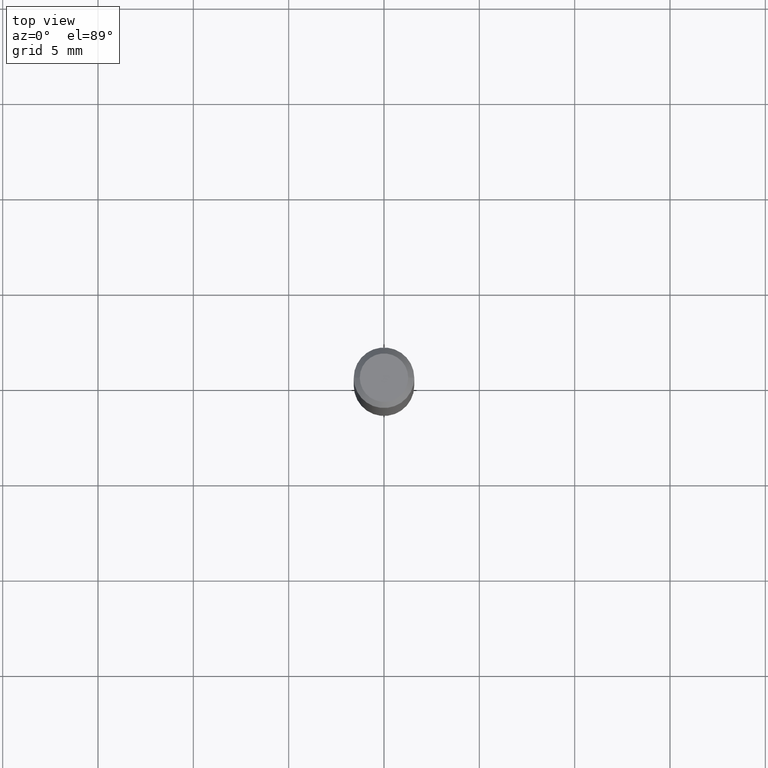
[diagram: clean part render]
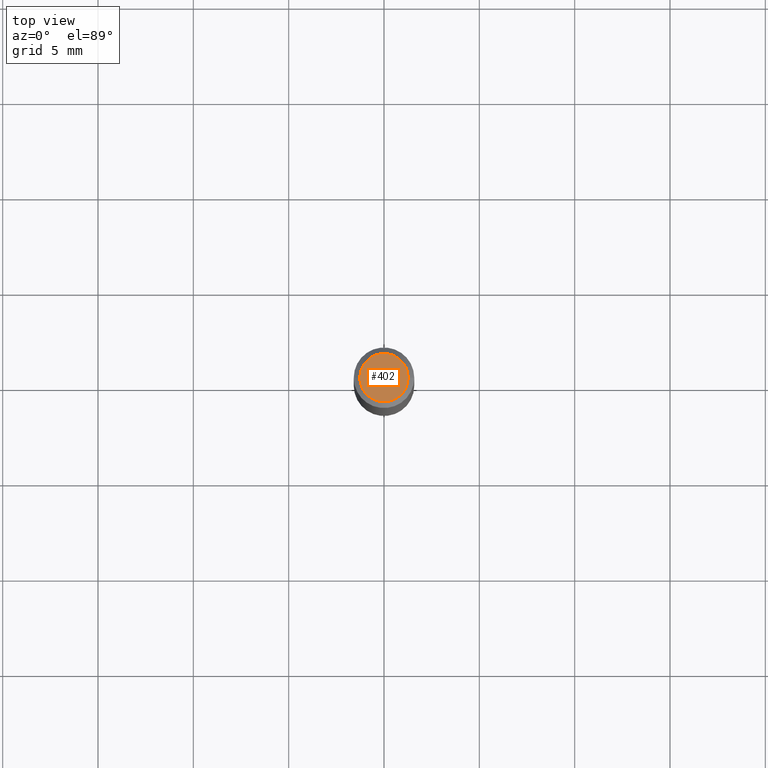
[diagram: same view with one face highlighted and labeled with its STEP entity id]
A machine part, top view. The second image highlights one B-rep face of the part: STEP entity #402.
In plain terms, the highlighted planar face has unit normal (0, -0, -1).
Its self-contained STEP definition (entity closure, byte-faithful):
#55 = ORIENTED_EDGE ( 'NONE', *, *, #461, .T. ) ;
#59 = CARTESIAN_POINT ( 'NONE',  ( -0.04999999999999999584, 3.709698922520826725E-16, -1.592040838894077649E-18 ) ) ;
#82 = EDGE_CURVE ( 'NONE', #386, #252, #362, .T. ) ;
#97 = AXIS2_PLACEMENT_3D ( 'NONE', #218, #309, #389 ) ;
#129 = DIRECTION ( 'NONE',  ( -1.000000000000000000, 6.982962677686265922E-15, -4.876176775795935793E-29 ) ) ;
#142 = ORIENTED_EDGE ( 'NONE', *, *, #82, .T. ) ;
#164 = PLANE ( 'NONE',  #180 ) ;
#180 = AXIS2_PLACEMENT_3D ( 'NONE', #370, #292, #129 ) ;
#202 = AXIS2_PLACEMENT_3D ( 'NONE', #423, #274, #217 ) ;
#217 = DIRECTION ( 'NONE',  ( 1.000000000000000000, -6.982962677686265922E-15, 4.875957971899673662E-29 ) ) ;
#218 = CARTESIAN_POINT ( 'NONE',  ( 3.893286209682126177E-47, -5.558580879666067980E-33, -1.592040838891559689E-18 ) ) ;
#252 = VERTEX_POINT ( 'NONE', #59 ) ;
#273 = CIRCLE ( 'NONE', #202, 0.04999999999999999584 ) ;
#274 = DIRECTION ( 'NONE',  ( -2.445468806185136597E-29, 3.491481338843145583E-15, 1.000000000000000000 ) ) ;
#290 = EDGE_LOOP ( 'NONE', ( #55, #142 ) ) ;
#292 = DIRECTION ( 'NONE',  ( 2.438088387897960049E-29, -3.491481338843145188E-15, -1.000000000000000000 ) ) ;
#309 = DIRECTION ( 'NONE',  ( -2.445468806185136597E-29, 3.491481338843145583E-15, 1.000000000000000000 ) ) ;
#326 = FACE_OUTER_BOUND ( 'NONE', #290, .T. ) ;
#362 = CIRCLE ( 'NONE', #97, 0.04999999999999999584 ) ;
#363 = CARTESIAN_POINT ( 'NONE',  ( 0.04999999999999999584, -4.077247707424184705E-16, -1.592040838888913461E-18 ) ) ;
#370 = CARTESIAN_POINT ( 'NONE',  ( 1.946643104841063088E-47, -2.779290439833033990E-33, -7.960204194457798443E-19 ) ) ;
#386 = VERTEX_POINT ( 'NONE', #363 ) ;
#389 = DIRECTION ( 'NONE',  ( 1.000000000000000000, -6.982962677686265922E-15, 4.875957971899673662E-29 ) ) ;
#402 = ADVANCED_FACE ( 'NONE', ( #326 ), #164, .F. ) ;
#423 = CARTESIAN_POINT ( 'NONE',  ( 3.893286209682126177E-47, -5.558580879666067980E-33, -1.592040838891559689E-18 ) ) ;
#461 = EDGE_CURVE ( 'NONE', #252, #386, #273, .T. ) ;